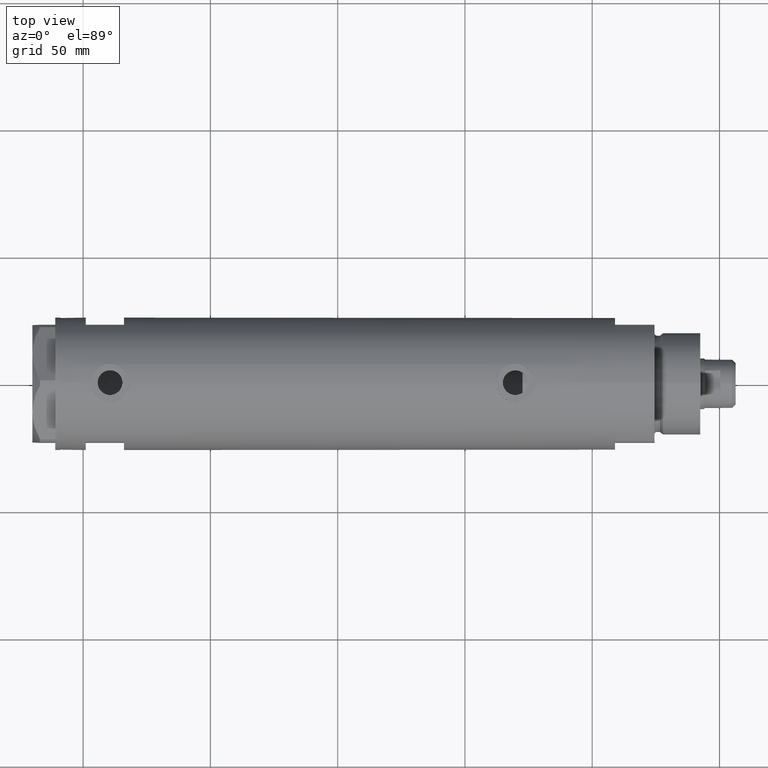
[diagram: clean part render]
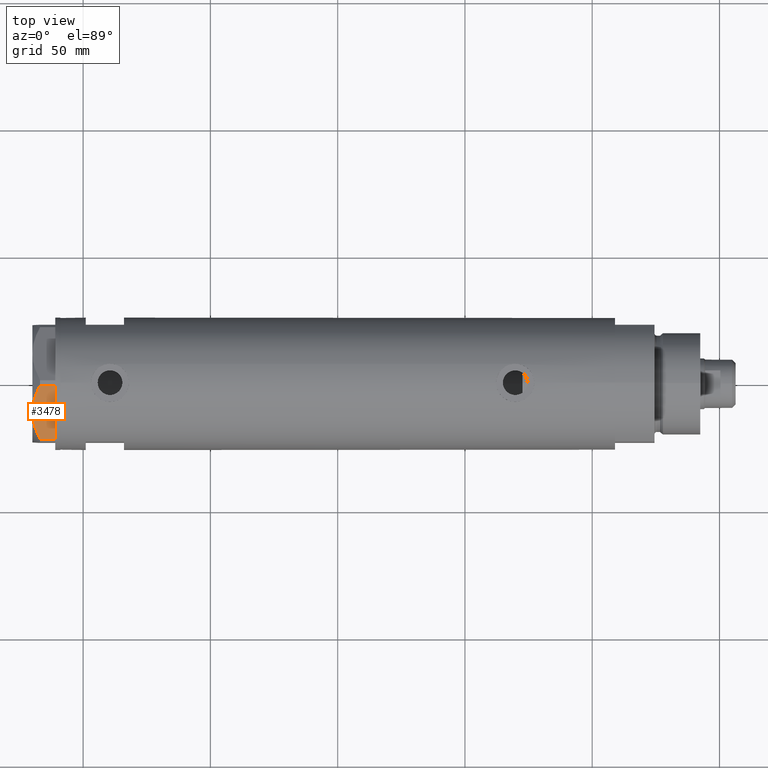
[diagram: same view with one face highlighted and labeled with its STEP entity id]
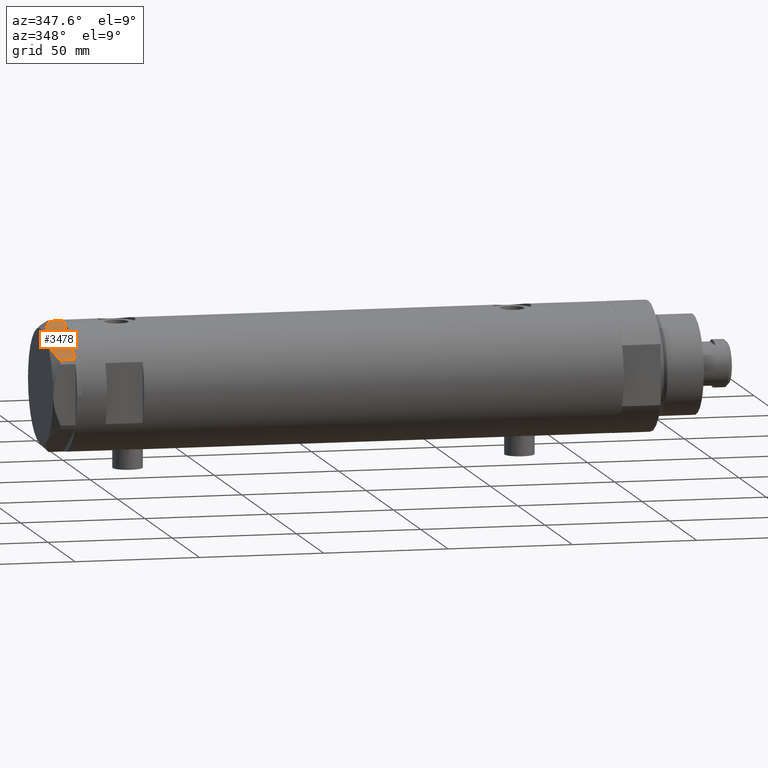
[diagram: same view with one face highlighted and labeled with its STEP entity id]
A machine part, top view. The second image highlights one B-rep face of the part: STEP entity #3478.
A second angle (auxiliary view) of the same face is appended — the face is thin or edge-on in the first view.
In plain terms, the highlighted planar face has unit normal (-0, 0.5, -0.866).
Its self-contained STEP definition (entity closure, byte-faithful):
#44 = ORIENTED_EDGE ( 'NONE', *, *, #3391, .T. ) ;
#100 = LINE ( 'NONE', #128, #4284 ) ;
#128 = CARTESIAN_POINT ( 'NONE',  ( -22.99999999999990408, -13.27905619136147841, 0.000000000000000000 ) ) ;
#297 = ORIENTED_EDGE ( 'NONE', *, *, #400, .T. ) ;
#318 = B_SPLINE_CURVE_WITH_KNOTS ( 'NONE', 3,
 ( #466, #2738, #4253, #1585, #3912, #4206, #2795, #1659, #2042, #3171 ),
 .UNSPECIFIED., .F., .F.,
 ( 4, 2, 2, 2, 4 ),
 ( 0.01376519981810312397, 0.01998941321701459134, 0.02154546656674245428, 0.02310151991647032069, 0.02621362661592604310 ),
 .UNSPECIFIED. ) ;
#358 = LINE ( 'NONE', #1178, #3670 ) ;
#400 = EDGE_CURVE ( 'NONE', #4059, #943, #3324, .T. ) ;
#466 = CARTESIAN_POINT ( 'NONE',  ( -11.49999999999990585, -19.91858428704219364, 9.000000000000000000 ) ) ;
#487 = LINE ( 'NONE', #1964, #976 ) ;
#545 = CARTESIAN_POINT ( 'NONE',  ( -18.67981377008999644, -15.77331687414923778, 7.629374868826104716 ) ) ;
#566 = ORIENTED_EDGE ( 'NONE', *, *, #4583, .F. ) ;
#579 = LINE ( 'NONE', #1991, #4211 ) ;
#912 = DIRECTION ( 'NONE',  ( 0.8660254037844415942, -0.4999999999999950595, 0.000000000000000000 ) ) ;
#943 = VERTEX_POINT ( 'NONE', #1771 ) ;
#965 = CARTESIAN_POINT ( 'NONE',  ( -11.49999999999990585, -19.91858428704219364, 9.000000000000000000 ) ) ;
#976 = VECTOR ( 'NONE', #3850, 1000.000000000000000 ) ;
#983 = CARTESIAN_POINT ( 'NONE',  ( -16.05322244309625290, -17.28978008384019915, 8.426899937603781865 ) ) ;
#1000 = EDGE_CURVE ( 'NONE', #4401, #3387, #2043, .T. ) ;
#1087 = ORIENTED_EDGE ( 'NONE', *, *, #2534, .T. ) ;
#1118 = DIRECTION ( 'NONE',  ( 0.000000000000000000, 0.000000000000000000, 1.000000000000000000 ) ) ;
#1178 = CARTESIAN_POINT ( 'NONE',  ( -22.99999999999990408, -13.27905619136147841, 0.000000000000000000 ) ) ;
#1192 = CARTESIAN_POINT ( 'NONE',  ( -0.9699484522383943208, -25.99811238272274494, 0.000000000000000000 ) ) ;
#1585 = CARTESIAN_POINT ( 'NONE',  ( -5.671686373603866294, -23.28356272816335348, 8.040681765829727823 ) ) ;
#1659 = CARTESIAN_POINT ( 'NONE',  ( -2.640413878808339110, -25.03366871902064261, 6.844201024439214187 ) ) ;
#1771 = CARTESIAN_POINT ( 'NONE',  ( -0.9699484522404678843, -25.99811238272155123, 5.983800287808756835 ) ) ;
#1914 = ORIENTED_EDGE ( 'NONE', *, *, #2346, .T. ) ;
#1964 = CARTESIAN_POINT ( 'NONE',  ( -22.99999999999990408, -13.27905619136147841, 0.000000000000000000 ) ) ;
#1991 = CARTESIAN_POINT ( 'NONE',  ( -22.03005154776132102, -13.83905619136147536, 9.000000000000000000 ) ) ;
#2036 = DIRECTION ( 'NONE',  ( -0.8660254037844414832, 0.4999999999999950040, 0.000000000000000000 ) ) ;
#2042 = CARTESIAN_POINT ( 'NONE',  ( -1.799196345398571983, -25.51934588838179607, 6.431317509510369845 ) ) ;
#2043 = B_SPLINE_CURVE_WITH_KNOTS ( 'NONE', 3,
 ( #2081, #4348, #545, #983, #2473, #2104, #3234, #2448, #2932, #2510 ),
 .UNSPECIFIED., .F., .F.,
 ( 4, 2, 2, 2, 4 ),
 ( 0.001228959670438514989, 0.007497079744270818830, 0.01063113978118697227, 0.01219816979964504812, 0.01376519981810312397 ),
 .UNSPECIFIED. ) ;
#2062 = FACE_OUTER_BOUND ( 'NONE', #4267, .T. ) ;
#2081 = CARTESIAN_POINT ( 'NONE',  ( -22.03005154776146313, -13.83905619136139364, 5.983800287807550689 ) ) ;
#2104 = CARTESIAN_POINT ( 'NONE',  ( -13.80210138309694301, -18.58946543380922378, 8.852712638955804181 ) ) ;
#2181 = VERTEX_POINT ( 'NONE', #2568 ) ;
#2184 = CARTESIAN_POINT ( 'NONE',  ( -22.03005154776146313, -13.83905619136139364, 5.983800287807550689 ) ) ;
#2277 = ORIENTED_EDGE ( 'NONE', *, *, #2314, .T. ) ;
#2302 = CARTESIAN_POINT ( 'NONE',  ( -22.03005154776132102, -13.83905619136147536, 0.000000000000000000 ) ) ;
#2314 = EDGE_CURVE ( 'NONE', #2920, #2181, #487, .T. ) ;
#2346 = EDGE_CURVE ( 'NONE', #2687, #4059, #358, .T. ) ;
#2448 = CARTESIAN_POINT ( 'NONE',  ( -12.41906678023023325, -19.38796083407287085, 8.981686407609506873 ) ) ;
#2456 = CARTESIAN_POINT ( 'NONE',  ( -22.99999999999990408, -13.27905619136147841, 9.000000000000000000 ) ) ;
#2473 = CARTESIAN_POINT ( 'NONE',  ( -15.16323225988328538, -17.80361615569431777, 8.637313967156948991 ) ) ;
#2510 = CARTESIAN_POINT ( 'NONE',  ( -11.49999999999990585, -19.91858428704219364, 9.000000000000000000 ) ) ;
#2509 = CARTESIAN_POINT ( 'NONE',  ( -0.9999999999997406519, -25.98076211353317433, 0.000000000000000000 ) ) ;
#2534 = EDGE_CURVE ( 'NONE', #2181, #2687, #100, .T. ) ;
#2550 = CARTESIAN_POINT ( 'NONE',  ( -0.9699484522383977625, -25.99811238272274494, 9.000000000000000000 ) ) ;
#2568 = CARTESIAN_POINT ( 'NONE',  ( -21.99999999999998224, -13.85640646055105485, 0.000000000000000000 ) ) ;
#2683 = DIRECTION ( 'NONE',  ( 0.8660254037844415942, -0.4999999999999950595, 0.000000000000000000 ) ) ;
#2687 = VERTEX_POINT ( 'NONE', #2509 ) ;
#2738 = CARTESIAN_POINT ( 'NONE',  ( -9.678244919010385416, -20.97037507344893115, 9.000000000000088818 ) ) ;
#2795 = CARTESIAN_POINT ( 'NONE',  ( -3.925137811031424562, -24.29193301091729396, 7.397272853992039821 ) ) ;
#2863 = DIRECTION ( 'NONE',  ( -0.000000000000000000, 0.000000000000000000, -1.000000000000000000 ) ) ;
#2867 = ORIENTED_EDGE ( 'NONE', *, *, #1000, .F. ) ;
#2920 = VERTEX_POINT ( 'NONE', #2302 ) ;
#2932 = CARTESIAN_POINT ( 'NONE',  ( -11.95865151389046588, -19.65378171203314395, 9.000000000000095923 ) ) ;
#3171 = CARTESIAN_POINT ( 'NONE',  ( -0.9699484522404678843, -25.99811238272155123, 5.983800287808756835 ) ) ;
#3234 = CARTESIAN_POINT ( 'NONE',  ( -13.34348161667001698, -18.85424967941148822, 8.907842277728438063 ) ) ;
#3324 = LINE ( 'NONE', #2550, #3407 ) ;
#3387 = VERTEX_POINT ( 'NONE', #965 ) ;
#3391 = EDGE_CURVE ( 'NONE', #4401, #2920, #579, .T. ) ;
#3407 = VECTOR ( 'NONE', #1118, 1000.000000000000000 ) ;
#3478 = ADVANCED_FACE ( 'NONE', ( #2062 ), #3932, .F. ) ;
#3670 = VECTOR ( 'NONE', #2683, 1000.000000000000000 ) ;
#3850 = DIRECTION ( 'NONE',  ( 0.8660254037844415942, -0.4999999999999950595, 0.000000000000000000 ) ) ;
#3912 = CARTESIAN_POINT ( 'NONE',  ( -5.229981517799206614, -23.53858114556453529, 7.892128867758890998 ) ) ;
#3932 = PLANE ( 'NONE',  #4367 ) ;
#3976 = DIRECTION ( 'NONE',  ( 0.4999999999999950595, 0.8660254037844415942, -0.000000000000000000 ) ) ;
#4059 = VERTEX_POINT ( 'NONE', #1192 ) ;
#4206 = CARTESIAN_POINT ( 'NONE',  ( -4.357207709417335373, -24.04247733877546267, 7.570552255230290406 ) ) ;
#4211 = VECTOR ( 'NONE', #2863, 1000.000000000000000 ) ;
#4253 = CARTESIAN_POINT ( 'NONE',  ( -7.884645426990268824, -22.00591022298511490, 8.707651728477127762 ) ) ;
#4267 = EDGE_LOOP ( 'NONE', ( #2867, #44, #2277, #1087, #1914, #297, #566 ) ) ;
#4284 = VECTOR ( 'NONE', #912, 1000.000000000000000 ) ;
#4348 = CARTESIAN_POINT ( 'NONE',  ( -20.37350567916426058, -14.79546339452094017, 6.877782426143456362 ) ) ;
#4367 = AXIS2_PLACEMENT_3D ( 'NONE', #2456, #3976, #2036 ) ;
#4401 = VERTEX_POINT ( 'NONE', #2184 ) ;
#4583 = EDGE_CURVE ( 'NONE', #3387, #943, #318, .T. ) ;